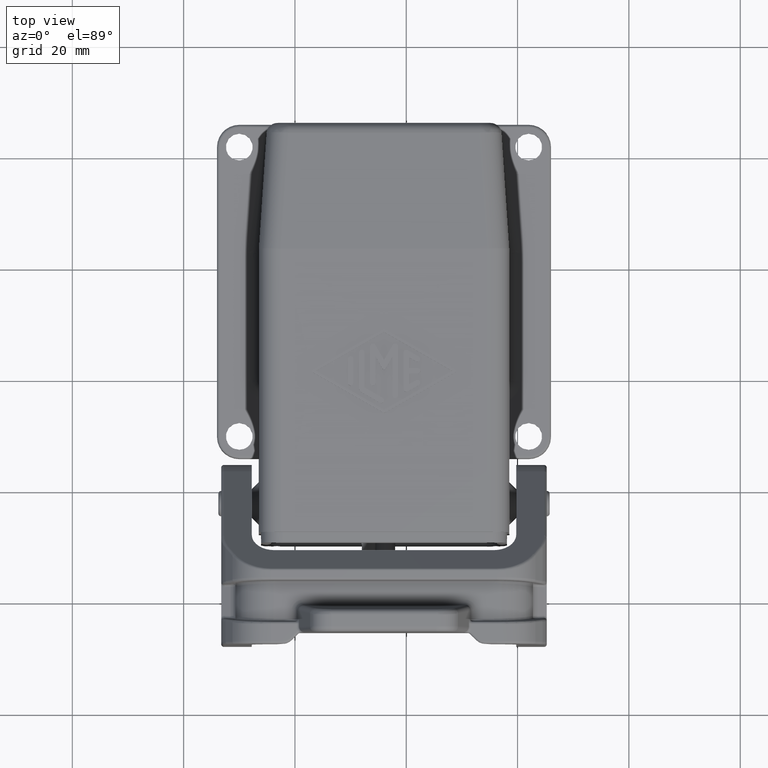
[diagram: clean part render]
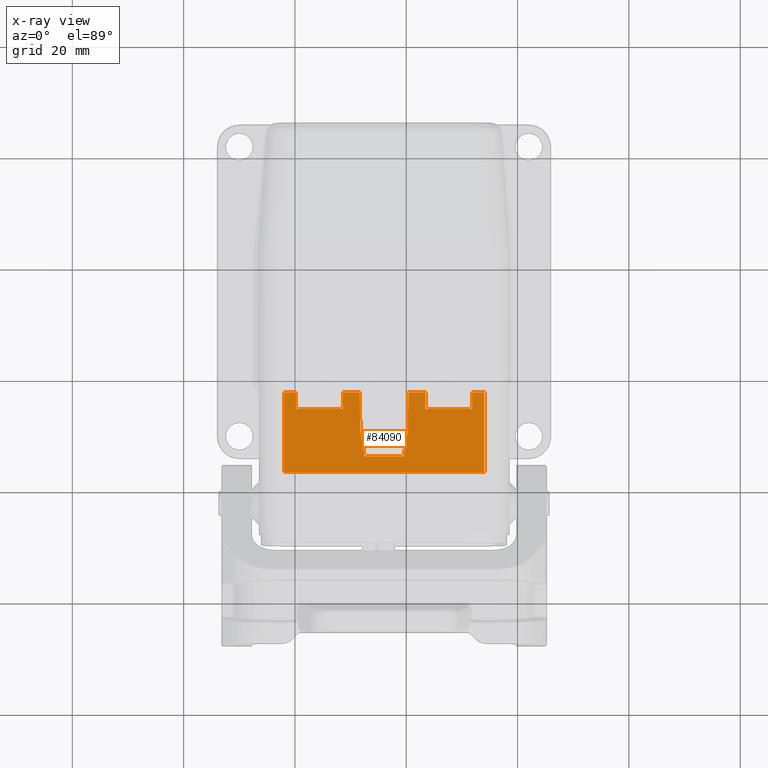
[diagram: x-ray — body ghosted, one internal face saturated and labeled with its STEP entity id]
A machine part, top view, then the same camera in x-ray: the body is ghosted and one INTERNAL B-rep face — a face not visible from any outside direction — is saturated and labeled: STEP entity #84090.
In plain terms, the highlighted planar face has unit normal (0, 0, 1).
Its self-contained STEP definition (entity closure, byte-faithful):
#81040=CARTESIAN_POINT('',(93.1316055413772,59.4642975413746,
103.39999991523));
#81050=VERTEX_POINT('',#81040);
#81080=CARTESIAN_POINT('',(93.1316055413772,18.9013455413746,
103.39999991523));
#81090=DIRECTION('',(-5.55111512312574E-17,1.,-2.764757726693E-16));
#81100=VECTOR('',#81090,1.);
#81110=LINE('',#81080,#81100);
#81120=CARTESIAN_POINT('',(93.1316055413772,58.9044653671625,
103.39999991523));
#81130=VERTEX_POINT('',#81120);
#81140=EDGE_CURVE('',#81130,#81050,#81110,.T.);
#81550=CARTESIAN_POINT('',(93.1316055413771,53.0045646328341,
103.39999991523));
#81560=VERTEX_POINT('',#81550);
#81590=CARTESIAN_POINT('',(93.1316055413772,52.4642975413745,
103.39999991523));
#81600=VERTEX_POINT('',#81590);
#81610=EDGE_CURVE('',#81600,#81560,#81110,.T.);
#82600=CARTESIAN_POINT('',(102.131605541377,87.7990805413746,
103.39999991523));
#82610=DIRECTION('',(-1.38130241669221E-15,2.764757726693E-16,1.));
#82620=DIRECTION('',(-5.55111512312574E-17,1.,-2.764757726693E-16));
#82630=AXIS2_PLACEMENT_3D('',#82600,#82610,#82620);
#82640=PLANE('',#82630);
#82650=CARTESIAN_POINT('',(95.9816055413771,18.9013455413746,
103.39999991523));
#82660=DIRECTION('',(5.55111512312574E-17,-1.,2.764757726693E-16));
#82670=VECTOR('',#82660,1.);
#82680=LINE('',#82650,#82670);
#82690=CARTESIAN_POINT('',(95.9816055413771,73.9642975413746,
103.39999991523));
#82700=VERTEX_POINT('',#82690);
#82710=CARTESIAN_POINT('',(95.9816055413771,37.9642975413746,
103.39999991523));
#82720=VERTEX_POINT('',#82710);
#82730=EDGE_CURVE('',#82700,#82720,#82680,.T.);
#82740=ORIENTED_EDGE('',*,*,#82730,.F.);
#82750=CARTESIAN_POINT('',(57.5744225413772,37.9642975413746,
103.39999991523));
#82760=DIRECTION('',(-1.,-5.55111512312578E-17,-1.38130241669221E-15));
#82770=VECTOR('',#82760,1.);
#82780=LINE('',#82750,#82770);
#82790=CARTESIAN_POINT('',(81.6316055413772,37.9642975413746,
103.39999991523));
#82800=VERTEX_POINT('',#82790);
#82810=EDGE_CURVE('',#82720,#82800,#82780,.T.);
#82820=ORIENTED_EDGE('',*,*,#82810,.F.);
#82830=CARTESIAN_POINT('',(81.6316055413772,18.9013455413746,
103.39999991523));
#82840=DIRECTION('',(-5.55111512312574E-17,1.,-2.764757726693E-16));
#82850=VECTOR('',#82840,1.);
#82860=LINE('',#82830,#82850);
#82870=CARTESIAN_POINT('',(81.6316055413772,40.1392975413746,
103.39999991523));
#82880=VERTEX_POINT('',#82870);
#82890=EDGE_CURVE('',#82800,#82880,#82860,.T.);
#82900=ORIENTED_EDGE('',*,*,#82890,.F.);
#82910=CARTESIAN_POINT('',(57.5744225413772,40.1392975413746,
103.39999991523));
#82920=DIRECTION('',(-1.,-5.55111512312578E-17,-1.38130241669221E-15));
#82930=VECTOR('',#82920,1.);
#82940=LINE('',#82910,#82930);
#82950=CARTESIAN_POINT('',(84.6316055413772,40.1392975413746,
103.39999991523));
#82960=VERTEX_POINT('',#82950);
#82970=EDGE_CURVE('',#82960,#82880,#82940,.T.);
#82980=ORIENTED_EDGE('',*,*,#82970,.T.);
#82990=CARTESIAN_POINT('',(84.6316055413772,18.9013455413746,
103.39999991523));
#83000=DIRECTION('',(5.55111512312574E-17,-1.,2.764757726693E-16));
#83010=VECTOR('',#83000,1.);
#83020=LINE('',#82990,#83010);
#83030=CARTESIAN_POINT('',(84.6316055413772,48.5392975413746,
103.39999991523));
#83040=VERTEX_POINT('',#83030);
#83050=EDGE_CURVE('',#83040,#82960,#83020,.T.);
#83060=ORIENTED_EDGE('',*,*,#83050,.T.);
#83070=CARTESIAN_POINT('',(57.5744225413772,48.5392975413746,
103.39999991523));
#83080=DIRECTION('',(1.,5.55111512312578E-17,1.38130241669221E-15));
#83090=VECTOR('',#83080,1.);
#83100=LINE('',#83070,#83090);
#83110=CARTESIAN_POINT('',(81.6316055413772,48.5392975413746,
103.39999991523));
#83120=VERTEX_POINT('',#83110);
#83130=EDGE_CURVE('',#83120,#83040,#83100,.T.);
#83140=ORIENTED_EDGE('',*,*,#83130,.T.);
#83150=CARTESIAN_POINT('',(81.6316055413772,18.9013455413746,
103.39999991523));
#83160=DIRECTION('',(-5.55111512312574E-17,1.,-2.764757726693E-16));
#83170=VECTOR('',#83160,1.);
#83180=LINE('',#83150,#83170);
#83190=CARTESIAN_POINT('',(81.6316055413772,51.5885642947001,
103.39999991523));
#83200=VERTEX_POINT('',#83190);
#83210=EDGE_CURVE('',#83120,#83200,#83180,.T.);
#83220=ORIENTED_EDGE('',*,*,#83210,.F.);
#83230=CARTESIAN_POINT('',(57.5744225413772,51.1686446034451,
103.39999991523));
#83240=DIRECTION('',(-0.999847695156391,-0.0174524064372836,
-1.3776225906917E-15));
#83250=VECTOR('',#83240,1.);
#83260=LINE('',#83230,#83250);
#83270=CARTESIAN_POINT('',(88.6316055413772,51.7107497491976,
103.39999991523));
#83280=VERTEX_POINT('',#83270);
#83290=EDGE_CURVE('',#83280,#83200,#83260,.T.);
#83300=ORIENTED_EDGE('',*,*,#83290,.T.);
#83310=CARTESIAN_POINT('',(93.1316055413772,52.4642975413746,
103.39999991523));
#83320=DIRECTION('',(-0.986267541001587,-0.165155495115009,
-1.31667224476807E-15));
#83330=VECTOR('',#83320,1.);
#83340=LINE('',#83310,#83330);
#83350=EDGE_CURVE('',#81600,#83280,#83340,.T.);
#83360=ORIENTED_EDGE('',*,*,#83350,.T.);
#83370=ORIENTED_EDGE('',*,*,#81610,.F.);
#83380=CARTESIAN_POINT('',(93.1316055413772,55.9545149999987,
103.39999991523));
#83390=DIRECTION('',(5.55111512312578E-17,-1.,2.764757726693E-16));
#83400=VECTOR('',#83390,1.);
#83410=LINE('',#83380,#83400);
#83420=EDGE_CURVE('',#81130,#81560,#83410,.T.);
#83430=ORIENTED_EDGE('',*,*,#83420,.T.);
#83440=ORIENTED_EDGE('',*,*,#81140,.F.);
#83450=CARTESIAN_POINT('',(93.1316055413772,59.4642975413746,
103.39999991523));
#83460=DIRECTION('',(-0.986267541001585,0.165155495115018,
-1.40799523101308E-15));
#83470=VECTOR('',#83460,1.);
#83480=LINE('',#83450,#83470);
#83490=CARTESIAN_POINT('',(88.6316055413772,60.2178453335516,
103.39999991523));
#83500=VERTEX_POINT('',#83490);
#83510=EDGE_CURVE('',#81050,#83500,#83480,.T.);
#83520=ORIENTED_EDGE('',*,*,#83510,.F.);
#83530=CARTESIAN_POINT('',(57.5744225413772,60.7599504793041,
103.39999991523));
#83540=DIRECTION('',(0.999847695156391,-0.0174524064372835,
1.38456148459561E-15));
#83550=VECTOR('',#83540,1.);
#83560=LINE('',#83530,#83550);
#83570=CARTESIAN_POINT('',(81.6316055413772,60.3400307880491,
103.39999991523));
#83580=VERTEX_POINT('',#83570);
#83590=EDGE_CURVE('',#83580,#83500,#83560,.T.);
#83600=ORIENTED_EDGE('',*,*,#83590,.T.);
#83610=CARTESIAN_POINT('',(81.6316055413772,18.9013455413746,
103.39999991523));
#83620=DIRECTION('',(-5.55111512312574E-17,1.,-2.764757726693E-16));
#83630=VECTOR('',#83620,1.);
#83640=LINE('',#83610,#83630);
#83650=CARTESIAN_POINT('',(81.6316055413772,63.3892975413746,
103.39999991523));
#83660=VERTEX_POINT('',#83650);
#83670=EDGE_CURVE('',#83580,#83660,#83640,.T.);
#83680=ORIENTED_EDGE('',*,*,#83670,.F.);
#83690=CARTESIAN_POINT('',(57.5744225413772,63.3892975413746,
103.39999991523));
#83700=DIRECTION('',(1.,5.55111512312578E-17,1.38130241669221E-15));
#83710=VECTOR('',#83700,1.);
#83720=LINE('',#83690,#83710);
#83730=CARTESIAN_POINT('',(84.6316055413772,63.3892975413746,
103.39999991523));
#83740=VERTEX_POINT('',#83730);
#83750=EDGE_CURVE('',#83660,#83740,#83720,.T.);
#83760=ORIENTED_EDGE('',*,*,#83750,.F.);
#83770=CARTESIAN_POINT('',(84.6316055413772,18.9013455413746,
103.39999991523));
#83780=DIRECTION('',(-5.55111512312574E-17,1.,-2.764757726693E-16));
#83790=VECTOR('',#83780,1.);
#83800=LINE('',#83770,#83790);
#83810=CARTESIAN_POINT('',(84.6316055413772,71.7892975413746,
103.39999991523));
#83820=VERTEX_POINT('',#83810);
#83830=EDGE_CURVE('',#83740,#83820,#83800,.T.);
#83840=ORIENTED_EDGE('',*,*,#83830,.F.);
#83850=CARTESIAN_POINT('',(57.5744225413772,71.7892975413746,
103.39999991523));
#83860=DIRECTION('',(-1.,-5.55111512312578E-17,-1.38130241669221E-15));
#83870=VECTOR('',#83860,1.);
#83880=LINE('',#83850,#83870);
#83890=CARTESIAN_POINT('',(81.6316055413772,71.7892975413746,
103.39999991523));
#83900=VERTEX_POINT('',#83890);
#83910=EDGE_CURVE('',#83820,#83900,#83880,.T.);
#83920=ORIENTED_EDGE('',*,*,#83910,.F.);
#83930=CARTESIAN_POINT('',(81.6316055413772,18.9013455413746,
103.39999991523));
#83940=DIRECTION('',(5.55111512312574E-17,-1.,2.764757726693E-16));
#83950=VECTOR('',#83940,1.);
#83960=LINE('',#83930,#83950);
#83970=CARTESIAN_POINT('',(81.6316055413772,73.9642975413746,
103.39999991523));
#83980=VERTEX_POINT('',#83970);
#83990=EDGE_CURVE('',#83980,#83900,#83960,.T.);
#84000=ORIENTED_EDGE('',*,*,#83990,.T.);
#84010=CARTESIAN_POINT('',(57.5744225413772,73.9642975413746,
103.39999991523));
#84020=DIRECTION('',(1.,5.55111512312578E-17,1.38130241669221E-15));
#84030=VECTOR('',#84020,1.);
#84040=LINE('',#84010,#84030);
#84050=EDGE_CURVE('',#83980,#82700,#84040,.T.);
#84060=ORIENTED_EDGE('',*,*,#84050,.F.);
#84070=EDGE_LOOP('',(#84060,#84000,#83920,#83840,#83760,#83680,#83600,
#83520,#83440,#83430,#83370,#83360,#83300,#83220,#83140,#83060,#82980,
#82900,#82820,#82740));
#84080=FACE_OUTER_BOUND('',#84070,.T.);
#84090=ADVANCED_FACE('',(#84080),#82640,.T.);